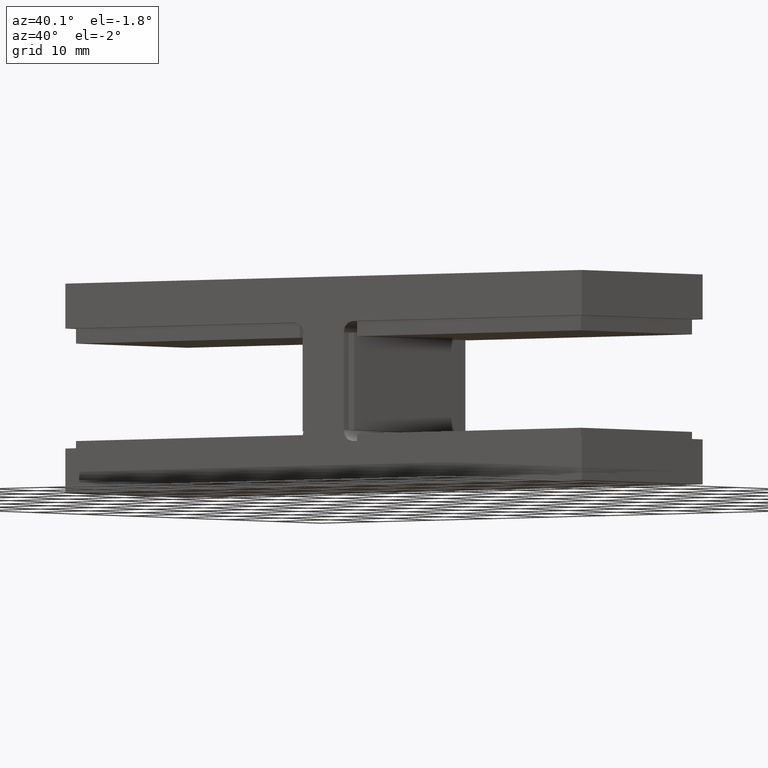
[diagram: clean part render]
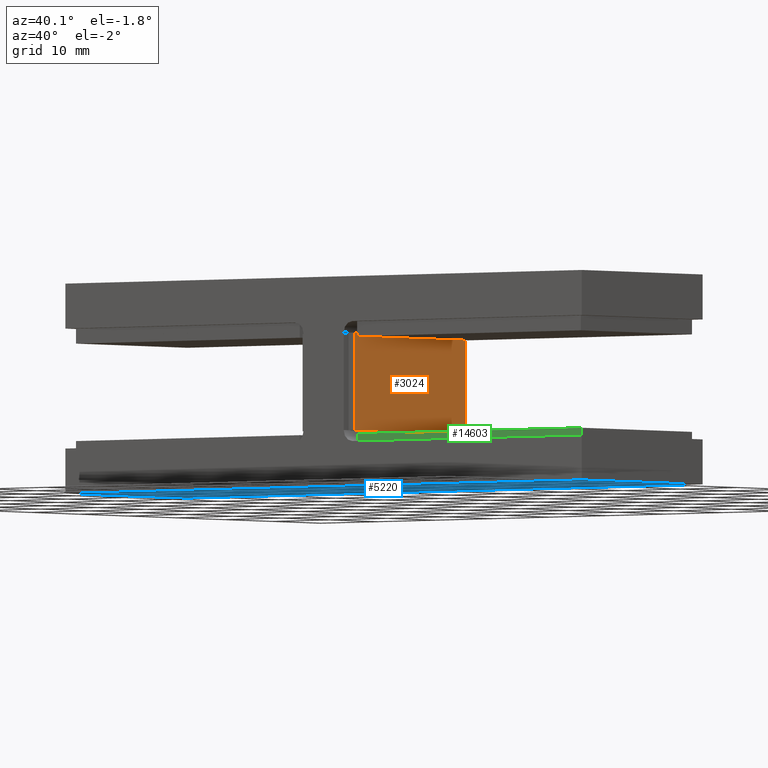
[diagram: same view with three faces highlighted in distinct colors, each labeled with its STEP entity id]
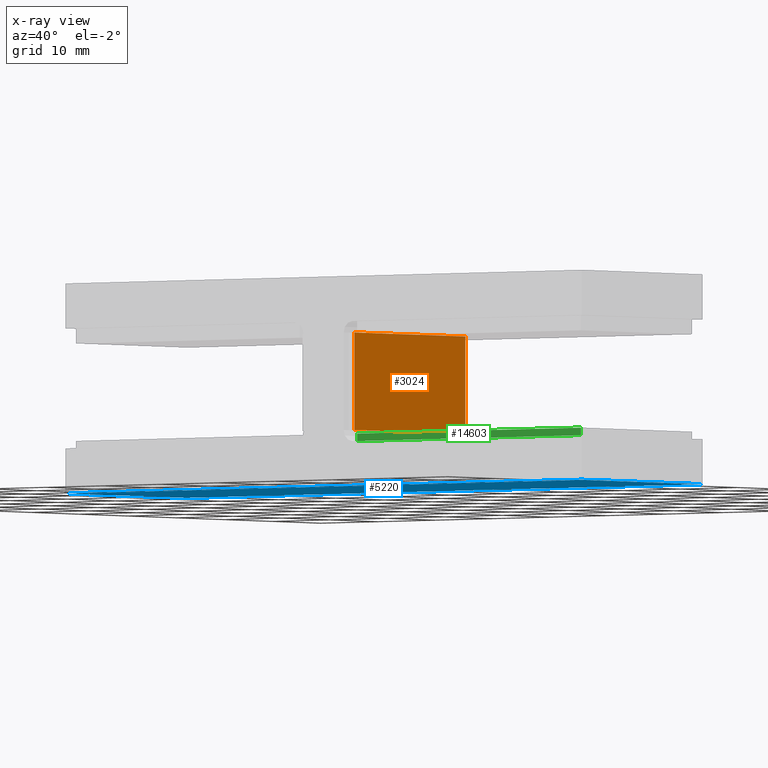
[diagram: x-ray of the same camera — body ghosted, the three highlighted faces saturated]
A machine part, auxiliary view with three faces highlighted in distinct colors.
The next image is the same camera in x-ray (body ghosted, the three faces saturated) — at least one of them is partly hidden behind the body in this view.
Their STEP definitions:

[orange] entity #3024 — the highlighted planar face has unit normal (-1, 0, 0).
#187 = DIRECTION ( 'NONE',  ( 1.508455196501571429E-16, -1.000000000000000000, 0.000000000000000000 ) ) ;
#255 = LINE ( 'NONE', #13218, #5268 ) ;
#1057 = LINE ( 'NONE', #21453, #1325 ) ;
#1209 = VECTOR ( 'NONE', #14283, 1000.000000000000000 ) ;
#1226 = CARTESIAN_POINT ( 'NONE',  ( -6.499999999999986677, -11.49999999999999645, -0.5000000000000004441 ) ) ;
#1325 = VECTOR ( 'NONE', #11426, 1000.000000000000000 ) ;
#1511 = CARTESIAN_POINT ( 'NONE',  ( 0.000000000000000000, 0.000000000000000000, -0.4999999999999995559 ) ) ;
#1583 = DIRECTION ( 'NONE',  ( 0.000000000000000000, 0.000000000000000000, 1.000000000000000000 ) ) ;
#1856 = EDGE_CURVE ( 'NONE', #8090, #18394, #255, .T. ) ;
#2122 = CARTESIAN_POINT ( 'NONE',  ( 6.500000000000010658, -11.49999999999999645, -0.4999999999999995559 ) ) ;
#2958 = ORIENTED_EDGE ( 'NONE', *, *, #1856, .F. ) ;
#3024 = ADVANCED_FACE ( 'NONE', ( #10908 ), #3425, .F. ) ;
#3425 = PLANE ( 'NONE',  #8566 ) ;
#5181 = DIRECTION ( 'NONE',  ( 1.000000000000000000, 0.000000000000000000, 0.000000000000000000 ) ) ;
#5268 = VECTOR ( 'NONE', #14910, 1000.000000000000000 ) ;
#5425 = EDGE_CURVE ( 'NONE', #18394, #21555, #18186, .T. ) ;
#5675 = LINE ( 'NONE', #14137, #1209 ) ;
#7117 = ORIENTED_EDGE ( 'NONE', *, *, #5425, .F. ) ;
#8090 = VERTEX_POINT ( 'NONE', #18932 ) ;
#8207 = CARTESIAN_POINT ( 'NONE',  ( -6.499999999999990230, 11.50000000000000355, -0.5000000000000004441 ) ) ;
#8566 = AXIS2_PLACEMENT_3D ( 'NONE', #1511, #1583, #5181 ) ;
#10238 = CARTESIAN_POINT ( 'NONE',  ( -6.499999999999990230, 11.50000000000000355, -0.5000000000000004441 ) ) ;
#10908 = FACE_OUTER_BOUND ( 'NONE', #16716, .T. ) ;
#10918 = ORIENTED_EDGE ( 'NONE', *, *, #17916, .F. ) ;
#11426 = DIRECTION ( 'NONE',  ( 1.000000000000000000, 0.000000000000000000, 0.000000000000000000 ) ) ;
#11777 = EDGE_CURVE ( 'NONE', #19149, #8090, #5675, .T. ) ;
#13218 = CARTESIAN_POINT ( 'NONE',  ( -6.499999999999990230, 11.50000000000000355, -0.5000000000000004441 ) ) ;
#14066 = ORIENTED_EDGE ( 'NONE', *, *, #11777, .F. ) ;
#14137 = CARTESIAN_POINT ( 'NONE',  ( 6.500000000000007105, 11.50000000000000355, -0.4999999999999995559 ) ) ;
#14283 = DIRECTION ( 'NONE',  ( -1.508455196501571429E-16, 1.000000000000000000, 0.000000000000000000 ) ) ;
#14910 = DIRECTION ( 'NONE',  ( -1.000000000000000000, 0.000000000000000000, 0.000000000000000000 ) ) ;
#16598 = VECTOR ( 'NONE', #187, 1000.000000000000000 ) ;
#16716 = EDGE_LOOP ( 'NONE', ( #14066, #10918, #7117, #2958 ) ) ;
#17916 = EDGE_CURVE ( 'NONE', #21555, #19149, #1057, .T. ) ;
#18186 = LINE ( 'NONE', #10238, #16598 ) ;
#18394 = VERTEX_POINT ( 'NONE', #8207 ) ;
#18932 = CARTESIAN_POINT ( 'NONE',  ( 6.500000000000007105, 11.50000000000000355, -0.4999999999999995559 ) ) ;
#19149 = VERTEX_POINT ( 'NONE', #2122 ) ;
#21453 = CARTESIAN_POINT ( 'NONE',  ( -6.499999999999986677, -11.49999999999999645, -0.5000000000000004441 ) ) ;
#21555 = VERTEX_POINT ( 'NONE', #1226 ) ;

[blue] entity #5220 — the highlighted planar face has unit normal (-0, 0, 1).
#742 = LINE ( 'NONE', #20987, #2332 ) ;
#922 = DIRECTION ( 'NONE',  ( -0.000000000000000000, -1.000000000000000000, -0.000000000000000000 ) ) ;
#974 = VERTEX_POINT ( 'NONE', #12559 ) ;
#1342 = FACE_OUTER_BOUND ( 'NONE', #9433, .T. ) ;
#1379 = ORIENTED_EDGE ( 'NONE', *, *, #12286, .T. ) ;
#1448 = ORIENTED_EDGE ( 'NONE', *, *, #18078, .F. ) ;
#2332 = VECTOR ( 'NONE', #922, 1000.000000000000000 ) ;
#2665 = DIRECTION ( 'NONE',  ( 1.000000000000000000, 0.000000000000000000, 5.782411586589357392E-17 ) ) ;
#2794 = VERTEX_POINT ( 'NONE', #10122 ) ;
#2930 = VECTOR ( 'NONE', #16813, 1000.000000000000000 ) ;
#4565 = CARTESIAN_POINT ( 'NONE',  ( -45.00000000000000000, 12.50000000000000000, -14.00000000000000178 ) ) ;
#4698 = VERTEX_POINT ( 'NONE', #10431 ) ;
#4903 = CARTESIAN_POINT ( 'NONE',  ( -45.00000000000000000, 12.50000000000000000, -14.00000000000000178 ) ) ;
#4991 = CARTESIAN_POINT ( 'NONE',  ( 45.00000000000000000, 12.50000000000000000, -13.99999999999999645 ) ) ;
#5220 = ADVANCED_FACE ( 'NONE', ( #1342 ), #12808, .F. ) ;
#5504 = DIRECTION ( 'NONE',  ( -1.000000000000000000, -0.000000000000000000, -5.782411586589357392E-17 ) ) ;
#5771 = CARTESIAN_POINT ( 'NONE',  ( -45.00000000000000000, -12.50000000000000000, -14.00000000000000178 ) ) ;
#6182 = VECTOR ( 'NONE', #20410, 1000.000000000000000 ) ;
#7229 = LINE ( 'NONE', #4991, #6182 ) ;
#7380 = LINE ( 'NONE', #4903, #2930 ) ;
#8258 = EDGE_CURVE ( 'NONE', #4698, #17088, #742, .T. ) ;
#8982 = CARTESIAN_POINT ( 'NONE',  ( -45.00000000000000000, -12.50000000000000000, -14.00000000000000178 ) ) ;
#9307 = ORIENTED_EDGE ( 'NONE', *, *, #12327, .T. ) ;
#9433 = EDGE_LOOP ( 'NONE', ( #9307, #12035, #1448, #1379 ) ) ;
#10122 = CARTESIAN_POINT ( 'NONE',  ( 45.00000000000000000, 12.50000000000000000, -13.99999999999999645 ) ) ;
#10431 = CARTESIAN_POINT ( 'NONE',  ( -45.00000000000000000, 12.50000000000000000, -14.00000000000000178 ) ) ;
#11978 = AXIS2_PLACEMENT_3D ( 'NONE', #4565, #21098, #2665 ) ;
#12035 = ORIENTED_EDGE ( 'NONE', *, *, #8258, .F. ) ;
#12286 = EDGE_CURVE ( 'NONE', #2794, #974, #7229, .T. ) ;
#12327 = EDGE_CURVE ( 'NONE', #974, #17088, #20639, .T. ) ;
#12559 = CARTESIAN_POINT ( 'NONE',  ( 45.00000000000000000, -12.50000000000000000, -13.99999999999999645 ) ) ;
#12808 = PLANE ( 'NONE',  #11978 ) ;
#16813 = DIRECTION ( 'NONE',  ( -1.000000000000000000, -0.000000000000000000, -5.782411586589357392E-17 ) ) ;
#17088 = VERTEX_POINT ( 'NONE', #5771 ) ;
#18078 = EDGE_CURVE ( 'NONE', #2794, #4698, #7380, .T. ) ;
#18289 = VECTOR ( 'NONE', #5504, 1000.000000000000000 ) ;
#20410 = DIRECTION ( 'NONE',  ( -0.000000000000000000, -1.000000000000000000, -0.000000000000000000 ) ) ;
#20639 = LINE ( 'NONE', #8982, #18289 ) ;
#20987 = CARTESIAN_POINT ( 'NONE',  ( -45.00000000000000000, 12.50000000000000000, -14.00000000000000178 ) ) ;
#21098 = DIRECTION ( 'NONE',  ( -5.782411586589357392E-17, 0.000000000000000000, 1.000000000000000000 ) ) ;

[green] entity #14603 — the highlighted planar face has unit normal (0, 1, 0).
#36 = FACE_OUTER_BOUND ( 'NONE', #2044, .T. ) ;
#93 = PLANE ( 'NONE',  #2278 ) ;
#1032 = LINE ( 'NONE', #14035, #21278 ) ;
#2044 = EDGE_LOOP ( 'NONE', ( #19921, #6333, #2211, #9901 ) ) ;
#2188 = CARTESIAN_POINT ( 'NONE',  ( -19.50000000000000000, -11.50000000000000178, -0.5000000000000004441 ) ) ;
#2211 = ORIENTED_EDGE ( 'NONE', *, *, #13431, .F. ) ;
#2278 = AXIS2_PLACEMENT_3D ( 'NONE', #18631, #13430, #3360 ) ;
#3360 = DIRECTION ( 'NONE',  ( 0.000000000000000000, -0.000000000000000000, 1.000000000000000000 ) ) ;
#3442 = VERTEX_POINT ( 'NONE', #7962 ) ;
#3525 = LINE ( 'NONE', #7214, #15898 ) ;
#3854 = EDGE_CURVE ( 'NONE', #3442, #4255, #16643, .T. ) ;
#4255 = VERTEX_POINT ( 'NONE', #2188 ) ;
#4343 = CARTESIAN_POINT ( 'NONE',  ( 19.49999999999998934, -11.50000000000000178, 0.5000000000000004441 ) ) ;
#6333 = ORIENTED_EDGE ( 'NONE', *, *, #19603, .F. ) ;
#6716 = VECTOR ( 'NONE', #10719, 1000.000000000000000 ) ;
#7214 = CARTESIAN_POINT ( 'NONE',  ( -19.50000000000000000, -11.50000000000000178, 0.5000000000000004441 ) ) ;
#7249 = LINE ( 'NONE', #9155, #6716 ) ;
#7962 = CARTESIAN_POINT ( 'NONE',  ( -19.50000000000000000, -11.50000000000000178, 0.5000000000000004441 ) ) ;
#9155 = CARTESIAN_POINT ( 'NONE',  ( -19.50000000000000000, -11.50000000000000178, -0.5000000000000004441 ) ) ;
#9901 = ORIENTED_EDGE ( 'NONE', *, *, #3854, .T. ) ;
#10270 = CARTESIAN_POINT ( 'NONE',  ( 19.49999999999998934, -11.50000000000000178, -0.5000000000000004441 ) ) ;
#10719 = DIRECTION ( 'NONE',  ( 1.000000000000000000, 0.000000000000000000, 0.000000000000000000 ) ) ;
#11247 = CARTESIAN_POINT ( 'NONE',  ( -19.50000000000000000, -11.50000000000000178, 0.5000000000000004441 ) ) ;
#11395 = DIRECTION ( 'NONE',  ( -0.000000000000000000, -0.000000000000000000, -1.000000000000000000 ) ) ;
#11559 = VERTEX_POINT ( 'NONE', #10270 ) ;
#11723 = EDGE_CURVE ( 'NONE', #4255, #11559, #7249, .T. ) ;
#13430 = DIRECTION ( 'NONE',  ( 0.000000000000000000, 1.000000000000000000, 0.000000000000000000 ) ) ;
#13431 = EDGE_CURVE ( 'NONE', #3442, #18917, #3525, .T. ) ;
#14015 = VECTOR ( 'NONE', #11395, 1000.000000000000000 ) ;
#14035 = CARTESIAN_POINT ( 'NONE',  ( 19.49999999999998934, -11.50000000000000178, 0.5000000000000004441 ) ) ;
#14603 = ADVANCED_FACE ( 'NONE', ( #36 ), #93, .F. ) ;
#15821 = DIRECTION ( 'NONE',  ( 1.000000000000000000, 0.000000000000000000, 0.000000000000000000 ) ) ;
#15898 = VECTOR ( 'NONE', #15821, 1000.000000000000000 ) ;
#16643 = LINE ( 'NONE', #11247, #14015 ) ;
#17181 = DIRECTION ( 'NONE',  ( -0.000000000000000000, -0.000000000000000000, -1.000000000000000000 ) ) ;
#18631 = CARTESIAN_POINT ( 'NONE',  ( -19.50000000000000000, -11.50000000000000178, 0.5000000000000004441 ) ) ;
#18917 = VERTEX_POINT ( 'NONE', #4343 ) ;
#19603 = EDGE_CURVE ( 'NONE', #18917, #11559, #1032, .T. ) ;
#19921 = ORIENTED_EDGE ( 'NONE', *, *, #11723, .T. ) ;
#21278 = VECTOR ( 'NONE', #17181, 1000.000000000000000 ) ;